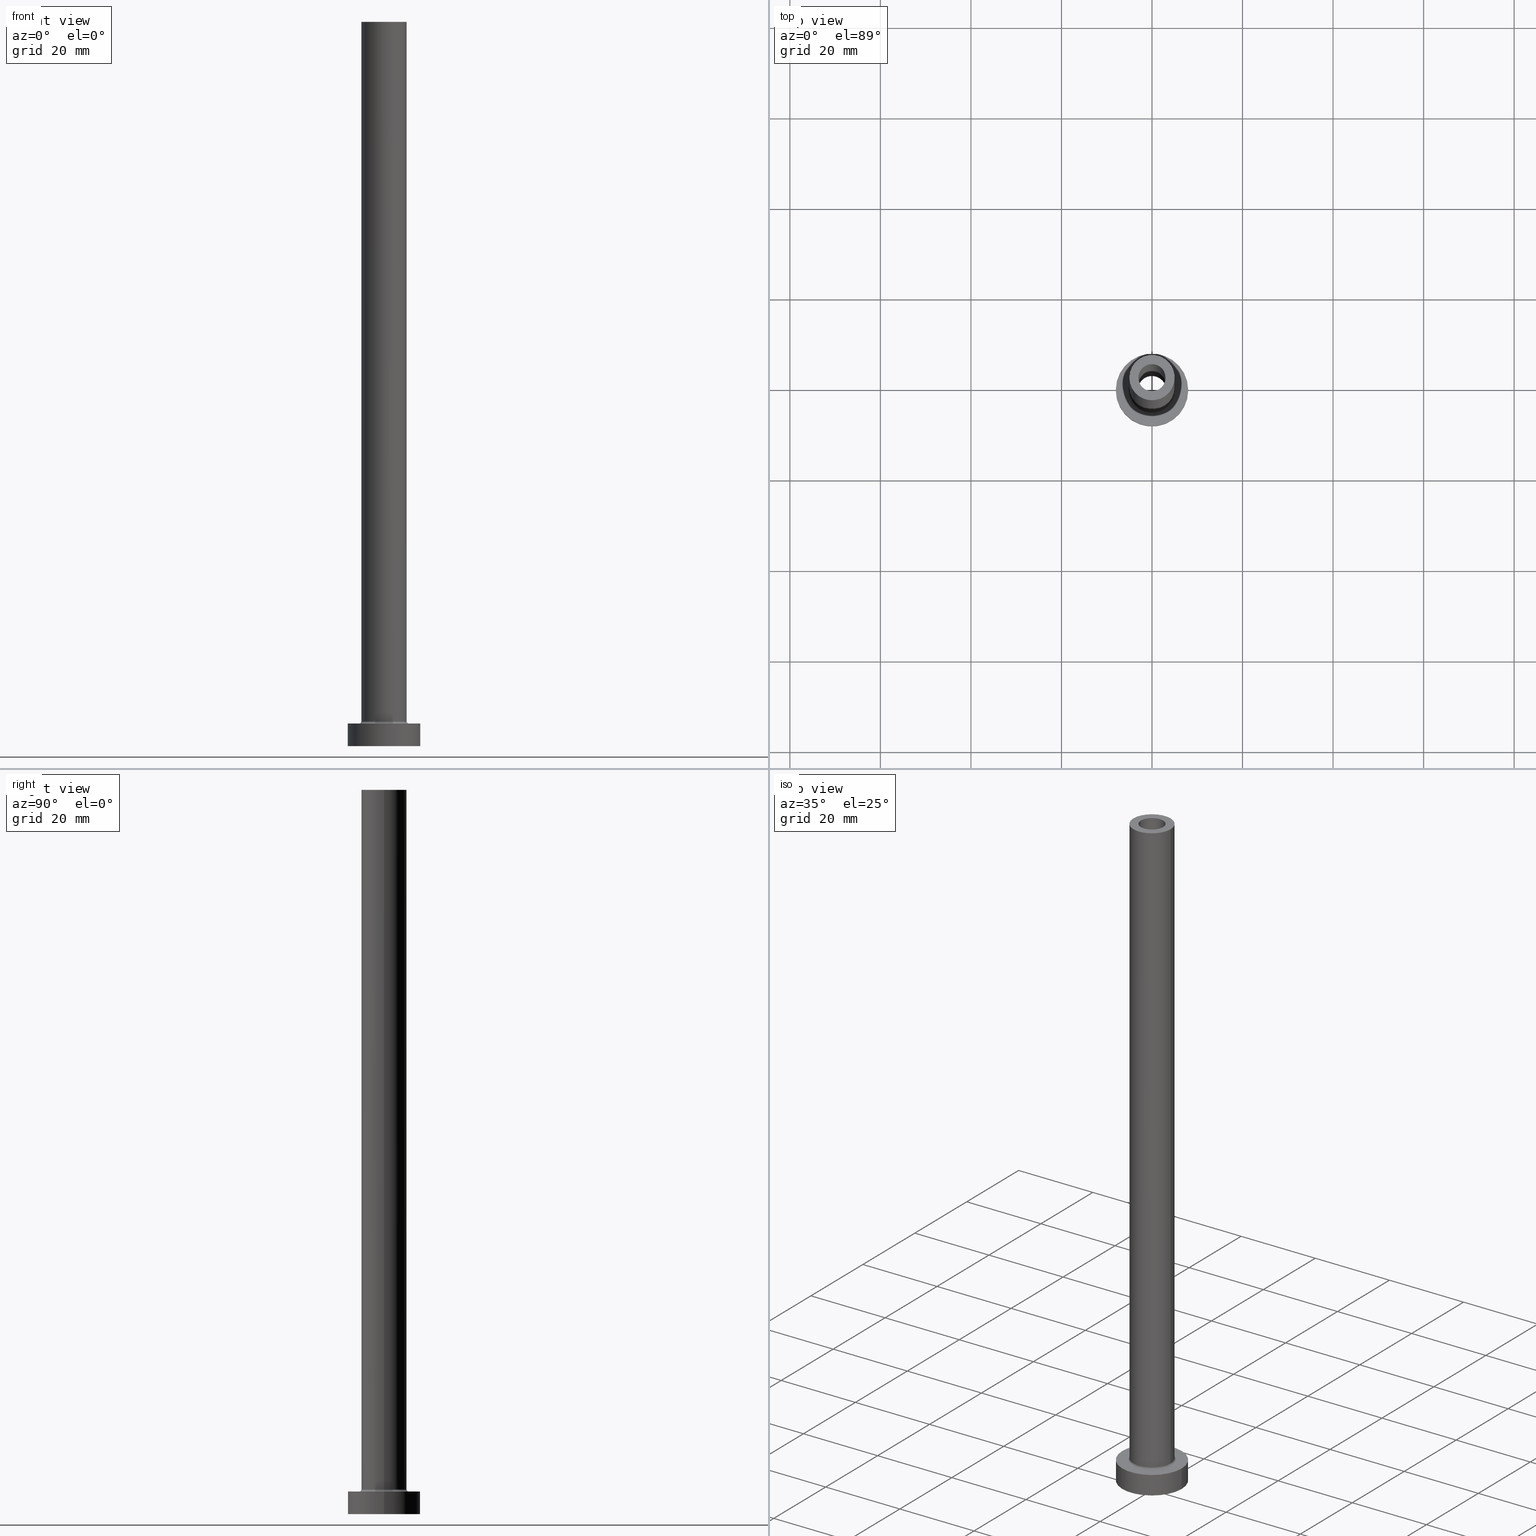
[diagram: canonical four-view strip — front | top / right | iso, engineering-drawing reading convention]
A machine part, canonical four-view strip (front | top / right | iso — engineering-drawing reading convention). The complete STEP part file that produces these views, byte-faithful:
ISO-10303-21;
HEADER;
FILE_DESCRIPTION (( 'STEP AP203' ),
    '1' );
FILE_NAME ('94f1.STEP',
    '2023-02-13T10:09:45',
    ( '' ),
    ( '' ),
    'SwSTEP 2.0',
    'SolidWorks 2019',
    '' );
FILE_SCHEMA (( 'CONFIG_CONTROL_DESIGN' ));
ENDSEC;

DATA;
#1 = DATE_AND_TIME ( #37, #456 ) ;
#2 = LINE ( 'NONE', #209, #336 ) ;
#3 = AXIS2_PLACEMENT_3D ( 'NONE', #190, #428, #461 ) ;
#4 = CARTESIAN_POINT ( 'NONE',  ( 0.000000000000000000, 0.000000000000000000, 160.0000000000000000 ) ) ;
#5 = CARTESIAN_POINT ( 'NONE',  ( 0.000000000000000000, 0.000000000000000000, 160.0000000000000000 ) ) ;
#6 = ORIENTED_EDGE ( 'NONE', *, *, #101, .F. ) ;
#7 = ORIENTED_EDGE ( 'NONE', *, *, #18, .F. ) ;
#8 = EDGE_LOOP ( 'NONE', ( #6, #390, #422, #401 ) ) ;
#9 = PERSON_AND_ORGANIZATION ( #211, #437 ) ;
#10 = VERTEX_POINT ( 'NONE', #149 ) ;
#11 = CARTESIAN_POINT ( 'NONE',  ( 0.000000000000000000, 0.000000000000000000, 0.000000000000000000 ) ) ;
#12 = EDGE_LOOP ( 'NONE', ( #191, #122 ) ) ;
#13 = CIRCLE ( 'NONE', #452, 5.000000000000000000 ) ;
#14 = VECTOR ( 'NONE', #217, 1000.000000000000000 ) ;
#15 = DIRECTION ( 'NONE',  ( 0.000000000000000000, 0.000000000000000000, 1.000000000000000000 ) ) ;
#16 = AXIS2_PLACEMENT_3D ( 'NONE', #35, #170, #277 ) ;
#17 = DIRECTION ( 'NONE',  ( 0.000000000000000000, 0.000000000000000000, 1.000000000000000000 ) ) ;
#18 = EDGE_CURVE ( 'NONE', #430, #169, #155, .T. ) ;
#19 = CARTESIAN_POINT ( 'NONE',  ( 3.000000000000000444, 3.673940397442059868E-16, 115.0000000000000000 ) ) ;
#20 = AXIS2_PLACEMENT_3D ( 'NONE', #393, #318, #143 ) ;
#21 = APPROVAL_PERSON_ORGANIZATION ( #309, #60, #176 ) ;
#22 = EDGE_CURVE ( 'NONE', #319, #364, #455, .T. ) ;
#23 = PLANE ( 'NONE',  #237 ) ;
#24 = FACE_OUTER_BOUND ( 'NONE', #200, .T. ) ;
#25 = AXIS2_PLACEMENT_3D ( 'NONE', #446, #115, #127 ) ;
#26 = EDGE_LOOP ( 'NONE', ( #275, #174, #311, #38 ) ) ;
#27 = CARTESIAN_POINT ( 'NONE',  ( 3.150000000000000355, 3.857637417314162196E-16, 0.000000000000000000 ) ) ;
#28 = EDGE_LOOP ( 'NONE', ( #426, #7, #431, #361 ) ) ;
#29 = DIRECTION ( 'NONE',  ( 1.000000000000000000, 0.000000000000000000, -0.000000000000000000 ) ) ;
#30 = EDGE_CURVE ( 'NONE', #355, #220, #396, .T. ) ;
#31 = ORIENTED_EDGE ( 'NONE', *, *, #101, .T. ) ;
#32 = ORIENTED_EDGE ( 'NONE', *, *, #251, .T. ) ;
#33 = CIRCLE ( 'NONE', #195, 5.000000000000000000 ) ;
#34 = ORIENTED_EDGE ( 'NONE', *, *, #64, .T. ) ;
#35 = CARTESIAN_POINT ( 'NONE',  ( 0.000000000000000000, 0.000000000000000000, 5.500000000000005329 ) ) ;
#36 = EDGE_LOOP ( 'NONE', ( #278, #119, #65, #163 ) ) ;
#37 = CALENDAR_DATE ( 2023, 13, 2 ) ;
#38 = ORIENTED_EDGE ( 'NONE', *, *, #30, .F. ) ;
#39 = PERSON_AND_ORGANIZATION ( #211, #437 ) ;
#40 = AXIS2_PLACEMENT_3D ( 'NONE', #202, #236, #420 ) ;
#41 = CC_DESIGN_SECURITY_CLASSIFICATION ( #367, ( #272 ) ) ;
#42 = VERTEX_POINT ( 'NONE', #407 ) ;
#43 = APPROVAL_ROLE ( '' ) ;
#44 = APPROVAL ( #152, 'NEUR�EN�' ) ;
#45 = VERTEX_POINT ( 'NONE', #150 ) ;
#46 = ORIENTED_EDGE ( 'NONE', *, *, #243, .F. ) ;
#47 = FACE_BOUND ( 'NONE', #290, .T. ) ;
#48 = EDGE_LOOP ( 'NONE', ( #416, #346 ) ) ;
#49 = CIRCLE ( 'NONE', #201, 3.000000000000000444 ) ;
#50 = FACE_OUTER_BOUND ( 'NONE', #80, .T. ) ;
#51 = CARTESIAN_POINT ( 'NONE',  ( 5.000000000000000000, 6.123233995736766282E-16, 160.0000000000000000 ) ) ;
#52 = COORDINATED_UNIVERSAL_TIME_OFFSET ( 1, 0, .AHEAD. ) ;
#53 = PRODUCT_DEFINITION ( 'NEZN�M�', '', #272, #186 ) ;
#54 = LINE ( 'NONE', #448, #412 ) ;
#55 = DIRECTION ( 'NONE',  ( -1.000000000000000000, 0.000000000000000000, 0.000000000000000000 ) ) ;
#56 = AXIS2_PLACEMENT_3D ( 'NONE', #11, #151, #284 ) ;
#57 = ORIENTED_EDGE ( 'NONE', *, *, #64, .F. ) ;
#58 = FACE_BOUND ( 'NONE', #218, .T. ) ;
#59 = VECTOR ( 'NONE', #192, 1000.000000000000000 ) ;
#60 = APPROVAL ( #423, 'NEUR�EN�' ) ;
#61 = LOCAL_TIME ( 11, 9, 45.00000000000000000, #392 ) ;
#62 = LINE ( 'NONE', #377, #293 ) ;
#63 = DIRECTION ( 'NONE',  ( 0.000000000000000000, 0.000000000000000000, -1.000000000000000000 ) ) ;
#64 = EDGE_CURVE ( 'NONE', #169, #430, #33, .T. ) ;
#65 = ORIENTED_EDGE ( 'NONE', *, *, #213, .T. ) ;
#66 = AXIS2_PLACEMENT_3D ( 'NONE', #91, #261, #348 ) ;
#67 = CC_DESIGN_APPROVAL ( #44, ( #367 ) ) ;
#68 = MANIFOLD_SOLID_BREP ( 'Odebrat vysunut�m4', #387 ) ;
#69 = ORIENTED_EDGE ( 'NONE', *, *, #307, .F. ) ;
#70 = CALENDAR_DATE ( 2023, 13, 2 ) ;
#71 = ORIENTED_EDGE ( 'NONE', *, *, #231, .T. ) ;
#72 = DIRECTION ( 'NONE',  ( 0.000000000000000000, 0.000000000000000000, 1.000000000000000000 ) ) ;
#73 = PERSON_AND_ORGANIZATION_ROLE ( 'classification_officer' ) ;
#74 = CALENDAR_DATE ( 2023, 13, 2 ) ;
#75 = CC_DESIGN_PERSON_AND_ORGANIZATION_ASSIGNMENT ( #181, #349, ( #297 ) ) ;
#76 = CARTESIAN_POINT ( 'NONE',  ( 0.000000000000000000, 0.000000000000000000, 0.000000000000000000 ) ) ;
#77 = AXIS2_PLACEMENT_3D ( 'NONE', #166, #421, #103 ) ;
#78 = DIRECTION ( 'NONE',  ( -0.000000000000000000, -0.000000000000000000, -1.000000000000000000 ) ) ;
#79 = CARTESIAN_POINT ( 'NONE',  ( 0.000000000000000000, 0.000000000000000000, 115.0000000000000000 ) ) ;
#80 = EDGE_LOOP ( 'NONE', ( #453, #182, #454, #34 ) ) ;
#81 = CYLINDRICAL_SURFACE ( 'NONE', #264, 3.000000000000000444 ) ;
#82 = DIRECTION ( 'NONE',  ( 1.000000000000000000, 0.000000000000000000, 0.000000000000000000 ) ) ;
#83 = VERTEX_POINT ( 'NONE', #324 ) ;
#84 = EDGE_CURVE ( 'NONE', #118, #430, #230, .T. ) ;
#85 = CARTESIAN_POINT ( 'NONE',  ( 3.000000000000000444, 3.673940397442059868E-16, 160.0000000000000000 ) ) ;
#86 = CARTESIAN_POINT ( 'NONE',  ( 0.000000000000000000, 0.000000000000000000, 5.000000000000000000 ) ) ;
#87 = CIRCLE ( 'NONE', #335, 0.5000000000000004441 ) ;
#88 = ORIENTED_EDGE ( 'NONE', *, *, #117, .F. ) ;
#89 = CIRCLE ( 'NONE', #380, 8.000000000000000000 ) ;
#90 = DIRECTION ( 'NONE',  ( -0.000000000000000000, -0.000000000000000000, -1.000000000000000000 ) ) ;
#91 = CARTESIAN_POINT ( 'NONE',  ( 5.500000000000000000, 0.000000000000000000, 5.500000000000005329 ) ) ;
#92 = DIRECTION ( 'NONE',  ( 1.000000000000000000, 0.000000000000000000, 0.000000000000000000 ) ) ;
#93 = EDGE_CURVE ( 'NONE', #364, #319, #329, .T. ) ;
#94 = AXIS2_PLACEMENT_3D ( 'NONE', #406, #90, #370 ) ;
#95 = APPROVAL_PERSON_ORGANIZATION ( #322, #44, #328 ) ;
#96 = DIRECTION ( 'NONE',  ( 0.000000000000000000, 0.000000000000000000, 1.000000000000000000 ) ) ;
#97 = EDGE_CURVE ( 'NONE', #177, #315, #256, .T. ) ;
#98 = FACE_OUTER_BOUND ( 'NONE', #327, .T. ) ;
#99 = AXIS2_PLACEMENT_3D ( 'NONE', #120, #255, #55 ) ;
#100 = FACE_OUTER_BOUND ( 'NONE', #8, .T. ) ;
#101 = EDGE_CURVE ( 'NONE', #118, #269, #250, .T. ) ;
#102 = FACE_OUTER_BOUND ( 'NONE', #359, .T. ) ;
#103 = DIRECTION ( 'NONE',  ( 1.000000000000000000, 0.000000000000000000, 0.000000000000000000 ) ) ;
#104 = EDGE_LOOP ( 'NONE', ( #232, #415 ) ) ;
#105 = ADVANCED_BREP_SHAPE_REPRESENTATION ( '94f1', ( #68, #113 ), #146 ) ;
#106 = PERSON_AND_ORGANIZATION_ROLE ( 'design_supplier' ) ;
#107 = ORIENTED_EDGE ( 'NONE', *, *, #400, .F. ) ;
#108 = CARTESIAN_POINT ( 'NONE',  ( 0.000000000000000000, 0.000000000000000000, 5.500000000000005329 ) ) ;
#109 = DATE_AND_TIME ( #74, #126 ) ;
#110 =( NAMED_UNIT ( * ) SI_UNIT ( $, .STERADIAN. ) SOLID_ANGLE_UNIT ( ) );
#111 = ORIENTED_EDGE ( 'NONE', *, *, #384, .F. ) ;
#112 = AXIS2_PLACEMENT_3D ( 'NONE', #360, #363, #321 ) ;
#113 = AXIS2_PLACEMENT_3D ( 'NONE', #76, #219, #358 ) ;
#114 = CARTESIAN_POINT ( 'NONE',  ( 3.150000000000000355, 3.857637417314162196E-16, 115.0000000000000000 ) ) ;
#115 = DIRECTION ( 'NONE',  ( 0.000000000000000000, 0.000000000000000000, 1.000000000000000000 ) ) ;
#116 = COORDINATED_UNIVERSAL_TIME_OFFSET ( 1, 0, .AHEAD. ) ;
#117 = EDGE_CURVE ( 'NONE', #42, #315, #357, .T. ) ;
#118 = VERTEX_POINT ( 'NONE', #399 ) ;
#119 = ORIENTED_EDGE ( 'NONE', *, *, #97, .T. ) ;
#120 = CARTESIAN_POINT ( 'NONE',  ( 0.000000000000000000, 0.000000000000000000, 160.0000000000000000 ) ) ;
#121 = DIRECTION ( 'NONE',  ( 1.000000000000000000, 0.000000000000000000, 0.000000000000000000 ) ) ;
#122 = ORIENTED_EDGE ( 'NONE', *, *, #22, .F. ) ;
#123 = CARTESIAN_POINT ( 'NONE',  ( 0.000000000000000000, 0.000000000000000000, 5.500000000000005329 ) ) ;
#124 = CARTESIAN_POINT ( 'NONE',  ( 0.000000000000000000, 0.000000000000000000, 123.9095454429505025 ) ) ;
#125 = CIRCLE ( 'NONE', #167, 5.500000000000000000 ) ;
#126 = LOCAL_TIME ( 11, 9, 45.00000000000000000, #310 ) ;
#127 = DIRECTION ( 'NONE',  ( 1.000000000000000000, 0.000000000000000000, 0.000000000000000000 ) ) ;
#128 = APPLICATION_CONTEXT ( 'configuration controlled 3d designs of mechanical parts and assemblies' ) ;
#129 = CC_DESIGN_DATE_AND_TIME_ASSIGNMENT ( #366, #257, ( #367 ) ) ;
#130 = CARTESIAN_POINT ( 'NONE',  ( -3.000000000000000444, 0.000000000000000000, 160.0000000000000000 ) ) ;
#131 =( LENGTH_UNIT ( ) NAMED_UNIT ( * ) SI_UNIT ( .MILLI., .METRE. ) );
#132 = CIRCLE ( 'NONE', #168, 8.000000000000000000 ) ;
#133 = EDGE_CURVE ( 'NONE', #220, #355, #49, .T. ) ;
#134 = DIRECTION ( 'NONE',  ( -1.000000000000000000, 0.000000000000000000, 0.000000000000000000 ) ) ;
#135 = CARTESIAN_POINT ( 'NONE',  ( 0.000000000000000000, 0.000000000000000000, 160.0000000000000000 ) ) ;
#136 = EDGE_LOOP ( 'NONE', ( #111, #372, #241, #434 ) ) ;
#137 = FACE_OUTER_BOUND ( 'NONE', #187, .T. ) ;
#138 = CARTESIAN_POINT ( 'NONE',  ( -8.000000000000000000, 0.000000000000000000, 5.000000000000000000 ) ) ;
#139 = DIRECTION ( 'NONE',  ( -0.000000000000000000, -0.000000000000000000, -1.000000000000000000 ) ) ;
#140 = DIRECTION ( 'NONE',  ( -0.000000000000000000, -0.000000000000000000, -1.000000000000000000 ) ) ;
#141 = ORIENTED_EDGE ( 'NONE', *, *, #133, .T. ) ;
#142 = ORIENTED_EDGE ( 'NONE', *, *, #153, .T. ) ;
#143 = DIRECTION ( 'NONE',  ( 1.000000000000000000, 0.000000000000000000, -0.000000000000000000 ) ) ;
#144 = CIRCLE ( 'NONE', #56, 8.000000000000000000 ) ;
#145 = APPROVAL_DATE_TIME ( #1, #373 ) ;
#146 =( GEOMETRIC_REPRESENTATION_CONTEXT ( 3 ) GLOBAL_UNCERTAINTY_ASSIGNED_CONTEXT ( ( #253 ) ) GLOBAL_UNIT_ASSIGNED_CONTEXT ( ( #131, #199, #110 ) ) REPRESENTATION_CONTEXT ( 'NONE', 'WORKASPACE' ) );
#147 = EDGE_CURVE ( 'NONE', #457, #177, #299, .T. ) ;
#148 = DIRECTION ( 'NONE',  ( -1.000000000000000000, 0.000000000000000000, 0.000000000000000000 ) ) ;
#149 = CARTESIAN_POINT ( 'NONE',  ( 8.000000000000000000, 9.797174393178825657E-16, 5.000000000000000000 ) ) ;
#150 = CARTESIAN_POINT ( 'NONE',  ( -5.500000000000000000, 6.735557395310442023E-16, 5.000000000000002665 ) ) ;
#151 = DIRECTION ( 'NONE',  ( 0.000000000000000000, 0.000000000000000000, 1.000000000000000000 ) ) ;
#152 = APPROVAL_STATUS ( 'not_yet_approved' ) ;
#153 = EDGE_CURVE ( 'NONE', #351, #350, #144, .T. ) ;
#154 = CARTESIAN_POINT ( 'NONE',  ( 0.000000000000000000, 0.000000000000000000, 115.0000000000000000 ) ) ;
#155 = CIRCLE ( 'NONE', #244, 5.000000000000000000 ) ;
#156 = ADVANCED_FACE ( 'NONE', ( #47, #98 ), #233, .F. ) ;
#157 = CARTESIAN_POINT ( 'NONE',  ( 0.000000000000000000, 0.000000000000000000, 0.000000000000000000 ) ) ;
#158 = FACE_OUTER_BOUND ( 'NONE', #36, .T. ) ;
#159 = DIRECTION ( 'NONE',  ( 1.000000000000000000, 0.000000000000000000, 0.000000000000000000 ) ) ;
#160 = ADVANCED_FACE ( 'NONE', ( #435 ), #189, .T. ) ;
#161 = DIRECTION ( 'NONE',  ( 1.000000000000000000, 0.000000000000000000, -0.000000000000000000 ) ) ;
#162 = LINE ( 'NONE', #138, #447 ) ;
#163 = ORIENTED_EDGE ( 'NONE', *, *, #326, .F. ) ;
#164 = DIRECTION ( 'NONE',  ( 0.000000000000000000, 0.000000000000000000, 1.000000000000000000 ) ) ;
#165 = PRODUCT_RELATED_PRODUCT_CATEGORY ( 'detail', '', ( #297 ) ) ;
#166 = CARTESIAN_POINT ( 'NONE',  ( 0.000000000000000000, 0.000000000000000000, 5.500000000000005329 ) ) ;
#167 = AXIS2_PLACEMENT_3D ( 'NONE', #207, #382, #458 ) ;
#168 = AXIS2_PLACEMENT_3D ( 'NONE', #449, #15, #411 ) ;
#169 = VERTEX_POINT ( 'NONE', #247 ) ;
#170 = DIRECTION ( 'NONE',  ( 0.000000000000000000, 0.000000000000000000, 1.000000000000000000 ) ) ;
#171 = APPLICATION_PROTOCOL_DEFINITION ( 'international standard', 'config_control_design', 1994, #331 ) ;
#172 = DIRECTION ( 'NONE',  ( 0.000000000000000000, 0.000000000000000000, -1.000000000000000000 ) ) ;
#173 = CARTESIAN_POINT ( 'NONE',  ( 0.000000000000000000, 0.000000000000000000, 5.000000000000000000 ) ) ;
#174 = ORIENTED_EDGE ( 'NONE', *, *, #22, .T. ) ;
#175 = EDGE_CURVE ( 'NONE', #45, #83, #208, .T. ) ;
#176 = APPROVAL_ROLE ( '' ) ;
#177 = VERTEX_POINT ( 'NONE', #114 ) ;
#178 = DIRECTION ( 'NONE',  ( -0.000000000000000000, -0.000000000000000000, -1.000000000000000000 ) ) ;
#179 = CIRCLE ( 'NONE', #40, 3.150000000000000355 ) ;
#180 = LOCAL_TIME ( 11, 9, 45.00000000000000000, #116 ) ;
#181 = PERSON_AND_ORGANIZATION ( #211, #437 ) ;
#182 = ORIENTED_EDGE ( 'NONE', *, *, #188, .F. ) ;
#183 = DIRECTION ( 'NONE',  ( 1.000000000000000000, 0.000000000000000000, 0.000000000000000000 ) ) ;
#184 = PERSON_AND_ORGANIZATION_ROLE ( 'creator' ) ;
#185 = ORIENTED_EDGE ( 'NONE', *, *, #147, .F. ) ;
#186 = DESIGN_CONTEXT ( 'detailed design', #331, 'design' ) ;
#187 = EDGE_LOOP ( 'NONE', ( #248, #31 ) ) ;
#188 = EDGE_CURVE ( 'NONE', #269, #118, #13, .T. ) ;
#189 = CYLINDRICAL_SURFACE ( 'NONE', #325, 8.000000000000000000 ) ;
#190 = CARTESIAN_POINT ( 'NONE',  ( 0.000000000000000000, 0.000000000000000000, 5.000000000000000000 ) ) ;
#191 = ORIENTED_EDGE ( 'NONE', *, *, #93, .F. ) ;
#192 = DIRECTION ( 'NONE',  ( 0.000000000000000000, 0.000000000000000000, -1.000000000000000000 ) ) ;
#193 = ADVANCED_FACE ( 'NONE', ( #249 ), #397, .T. ) ;
#194 = DIRECTION ( 'NONE',  ( 1.000000000000000000, 0.000000000000000000, 0.000000000000000000 ) ) ;
#195 = AXIS2_PLACEMENT_3D ( 'NONE', #123, #436, #283 ) ;
#196 = CC_DESIGN_APPROVAL ( #60, ( #53 ) ) ;
#197 = ADVANCED_FACE ( 'NONE', ( #320 ), #441, .F. ) ;
#198 = DIRECTION ( 'NONE',  ( 0.000000000000000000, 0.000000000000000000, -1.000000000000000000 ) ) ;
#199 =( NAMED_UNIT ( * ) PLANE_ANGLE_UNIT ( ) SI_UNIT ( $, .RADIAN. ) );
#200 = EDGE_LOOP ( 'NONE', ( #432, #32, #440, #226 ) ) ;
#201 = AXIS2_PLACEMENT_3D ( 'NONE', #79, #223, #225 ) ;
#202 = CARTESIAN_POINT ( 'NONE',  ( 0.000000000000000000, 0.000000000000000000, 115.0000000000000000 ) ) ;
#203 = PLANE ( 'NONE',  #280 ) ;
#204 = EDGE_LOOP ( 'NONE', ( #69, #107, #254, #142 ) ) ;
#205 = CC_DESIGN_PERSON_AND_ORGANIZATION_ASSIGNMENT ( #39, #73, ( #367 ) ) ;
#206 = DIRECTION ( 'NONE',  ( -1.000000000000000000, 0.000000000000000000, 0.000000000000000000 ) ) ;
#207 = CARTESIAN_POINT ( 'NONE',  ( 0.000000000000000000, 0.000000000000000000, 5.000000000000000000 ) ) ;
#208 = CIRCLE ( 'NONE', #3, 5.500000000000000000 ) ;
#209 = CARTESIAN_POINT ( 'NONE',  ( -3.000000000000000444, 0.000000000000000000, 160.0000000000000000 ) ) ;
#210 = MECHANICAL_CONTEXT ( 'NONE', #128, 'mechanical' ) ;
#211 = PERSON ( 'NEUR�EN�', 'NEUR�EN�', 'NEUR�EN�', ('NEUR�EN�'), ('NEUR�EN�'), ('NEUR�EN�') ) ;
#212 = VERTEX_POINT ( 'NONE', #291 ) ;
#213 = EDGE_CURVE ( 'NONE', #315, #42, #262, .T. ) ;
#214 = DATE_AND_TIME ( #427, #61 ) ;
#215 = COORDINATED_UNIVERSAL_TIME_OFFSET ( 1, 0, .AHEAD. ) ;
#216 = CARTESIAN_POINT ( 'NONE',  ( 0.000000000000000000, 0.000000000000000000, 5.000000000000000000 ) ) ;
#217 = DIRECTION ( 'NONE',  ( 0.000000000000000000, 0.000000000000000000, -1.000000000000000000 ) ) ;
#218 = EDGE_LOOP ( 'NONE', ( #88, #362 ) ) ;
#219 = DIRECTION ( 'NONE',  ( 0.000000000000000000, 0.000000000000000000, 1.000000000000000000 ) ) ;
#220 = VERTEX_POINT ( 'NONE', #298 ) ;
#221 = AXIS2_PLACEMENT_3D ( 'NONE', #135, #139, #206 ) ;
#222 = ORIENTED_EDGE ( 'NONE', *, *, #289, .T. ) ;
#223 = DIRECTION ( 'NONE',  ( 0.000000000000000000, 0.000000000000000000, 1.000000000000000000 ) ) ;
#224 = DIRECTION ( 'NONE',  ( -1.000000000000000000, 0.000000000000000000, 0.000000000000000000 ) ) ;
#225 = DIRECTION ( 'NONE',  ( 1.000000000000000000, 0.000000000000000000, 0.000000000000000000 ) ) ;
#226 = ORIENTED_EDGE ( 'NONE', *, *, #117, .T. ) ;
#227 = DIRECTION ( 'NONE',  ( 0.000000000000000000, 0.000000000000000000, -1.000000000000000000 ) ) ;
#228 = DIRECTION ( 'NONE',  ( 0.000000000000000000, 0.000000000000000000, 1.000000000000000000 ) ) ;
#229 = AXIS2_PLACEMENT_3D ( 'NONE', #154, #438, #292 ) ;
#230 = LINE ( 'NONE', #51, #424 ) ;
#231 = EDGE_CURVE ( 'NONE', #319, #355, #451, .T. ) ;
#232 = ORIENTED_EDGE ( 'NONE', *, *, #153, .F. ) ;
#233 = PLANE ( 'NONE',  #20 ) ;
#234 = DIRECTION ( 'NONE',  ( 1.000000000000000000, 0.000000000000000000, -0.000000000000000000 ) ) ;
#235 = AXIS2_PLACEMENT_3D ( 'NONE', #300, #63, #134 ) ;
#236 = DIRECTION ( 'NONE',  ( 0.000000000000000000, 0.000000000000000000, 1.000000000000000000 ) ) ;
#237 = AXIS2_PLACEMENT_3D ( 'NONE', #270, #164, #234 ) ;
#238 = CARTESIAN_POINT ( 'NONE',  ( -5.500000000000000000, 6.735557395310442023E-16, 5.500000000000005329 ) ) ;
#239 = ADVANCED_FACE ( 'NONE', ( #50 ), #259, .T. ) ;
#240 = PLANE ( 'NONE',  #279 ) ;
#241 = ORIENTED_EDGE ( 'NONE', *, *, #330, .T. ) ;
#242 = DIRECTION ( 'NONE',  ( 1.224646799147353207E-16, 1.000000000000000000, -0.000000000000000000 ) ) ;
#243 = EDGE_CURVE ( 'NONE', #83, #45, #125, .T. ) ;
#244 = AXIS2_PLACEMENT_3D ( 'NONE', #108, #378, #288 ) ;
#245 = ORIENTED_EDGE ( 'NONE', *, *, #133, .F. ) ;
#246 = ORIENTED_EDGE ( 'NONE', *, *, #251, .F. ) ;
#247 = CARTESIAN_POINT ( 'NONE',  ( -5.000000000000000000, 0.000000000000000000, 5.500000000000005329 ) ) ;
#248 = ORIENTED_EDGE ( 'NONE', *, *, #188, .T. ) ;
#249 = FACE_OUTER_BOUND ( 'NONE', #204, .T. ) ;
#250 = CIRCLE ( 'NONE', #25, 5.000000000000000000 ) ;
#251 = EDGE_CURVE ( 'NONE', #177, #457, #179, .T. ) ;
#252 = AXIS2_PLACEMENT_3D ( 'NONE', #124, #198, #267 ) ;
#253 = UNCERTAINTY_MEASURE_WITH_UNIT (LENGTH_MEASURE( 1.000000000000000082E-05 ), #131, 'distance_accuracy_value', 'NONE');
#254 = ORIENTED_EDGE ( 'NONE', *, *, #263, .T. ) ;
#255 = DIRECTION ( 'NONE',  ( 0.000000000000000000, 0.000000000000000000, -1.000000000000000000 ) ) ;
#256 = LINE ( 'NONE', #444, #59 ) ;
#257 = DATE_TIME_ROLE ( 'classification_date' ) ;
#258 = ADVANCED_FACE ( 'NONE', ( #24 ), #381, .F. ) ;
#259 = CYLINDRICAL_SURFACE ( 'NONE', #94, 5.000000000000000000 ) ;
#260 = CARTESIAN_POINT ( 'NONE',  ( 0.000000000000000000, 0.000000000000000000, 160.0000000000000000 ) ) ;
#261 = DIRECTION ( 'NONE',  ( 0.000000000000000000, -1.000000000000000000, 0.000000000000000000 ) ) ;
#262 = CIRCLE ( 'NONE', #365, 3.150000000000000355 ) ;
#263 = EDGE_CURVE ( 'NONE', #212, #351, #162, .T. ) ;
#264 = AXIS2_PLACEMENT_3D ( 'NONE', #4, #172, #148 ) ;
#265 = AXIS2_PLACEMENT_3D ( 'NONE', #371, #17, #121 ) ;
#266 = APPROVAL_PERSON_ORGANIZATION ( #286, #373, #43 ) ;
#267 = DIRECTION ( 'NONE',  ( -1.000000000000000000, 0.000000000000000000, 0.000000000000000000 ) ) ;
#268 = ADVANCED_FACE ( 'NONE', ( #417, #102 ), #240, .T. ) ;
#269 = VERTEX_POINT ( 'NONE', #276 ) ;
#270 = CARTESIAN_POINT ( 'NONE',  ( 0.000000000000000000, 0.000000000000000000, 160.0000000000000000 ) ) ;
#271 = TOROIDAL_SURFACE ( 'NONE', #77, 5.500000000000000000, 0.5000000000000000000 ) ;
#272 = PRODUCT_DEFINITION_FORMATION_WITH_SPECIFIED_SOURCE ( 'LIBOVOLN�', '', #297, .NOT_KNOWN. ) ;
#273 = DIRECTION ( 'NONE',  ( 0.000000000000000000, 0.000000000000000000, -1.000000000000000000 ) ) ;
#274 = ADVANCED_FACE ( 'NONE', ( #100 ), #388, .T. ) ;
#275 = ORIENTED_EDGE ( 'NONE', *, *, #231, .F. ) ;
#276 = CARTESIAN_POINT ( 'NONE',  ( -5.000000000000000000, 0.000000000000000000, 160.0000000000000000 ) ) ;
#277 = DIRECTION ( 'NONE',  ( 1.000000000000000000, 0.000000000000000000, 0.000000000000000000 ) ) ;
#278 = ORIENTED_EDGE ( 'NONE', *, *, #147, .T. ) ;
#279 = AXIS2_PLACEMENT_3D ( 'NONE', #216, #338, #161 ) ;
#280 = AXIS2_PLACEMENT_3D ( 'NONE', #301, #96, #29 ) ;
#281 = ORIENTED_EDGE ( 'NONE', *, *, #30, .T. ) ;
#282 = CC_DESIGN_PERSON_AND_ORGANIZATION_ASSIGNMENT ( #9, #106, ( #272 ) ) ;
#283 = DIRECTION ( 'NONE',  ( 1.000000000000000000, 0.000000000000000000, 0.000000000000000000 ) ) ;
#284 = DIRECTION ( 'NONE',  ( 1.000000000000000000, 0.000000000000000000, 0.000000000000000000 ) ) ;
#285 = CIRCLE ( 'NONE', #343, 8.000000000000000000 ) ;
#286 = PERSON_AND_ORGANIZATION ( #211, #437 ) ;
#287 = CARTESIAN_POINT ( 'NONE',  ( 0.000000000000000000, 0.000000000000000000, 5.000000000000000000 ) ) ;
#288 = DIRECTION ( 'NONE',  ( 1.000000000000000000, 0.000000000000000000, 0.000000000000000000 ) ) ;
#289 = EDGE_CURVE ( 'NONE', #169, #45, #87, .T. ) ;
#290 = EDGE_LOOP ( 'NONE', ( #141, #281 ) ) ;
#291 = CARTESIAN_POINT ( 'NONE',  ( -8.000000000000000000, 0.000000000000000000, 5.000000000000000000 ) ) ;
#292 = DIRECTION ( 'NONE',  ( 1.000000000000000000, 0.000000000000000000, 0.000000000000000000 ) ) ;
#293 = VECTOR ( 'NONE', #337, 1000.000000000000000 ) ;
#294 = CC_DESIGN_APPROVAL ( #373, ( #272 ) ) ;
#295 = CYLINDRICAL_SURFACE ( 'NONE', #252, 3.150000000000000355 ) ;
#296 = DIRECTION ( 'NONE',  ( -0.000000000000000000, -0.000000000000000000, -1.000000000000000000 ) ) ;
#297 = PRODUCT ( '94f1', '94f1', '', ( #210 ) ) ;
#298 = CARTESIAN_POINT ( 'NONE',  ( -3.000000000000000444, 0.000000000000000000, 115.0000000000000000 ) ) ;
#299 = CIRCLE ( 'NONE', #112, 3.150000000000000355 ) ;
#300 = CARTESIAN_POINT ( 'NONE',  ( 0.000000000000000000, 0.000000000000000000, 123.9095454429505025 ) ) ;
#301 = CARTESIAN_POINT ( 'NONE',  ( 0.000000000000000000, 0.000000000000000000, 0.000000000000000000 ) ) ;
#302 = CARTESIAN_POINT ( 'NONE',  ( 3.000000000000000444, 3.673940397442059868E-16, 160.0000000000000000 ) ) ;
#303 = FACE_BOUND ( 'NONE', #12, .T. ) ;
#304 = PRODUCT_DEFINITION_SHAPE ( 'NONE', 'NONE',  #53 ) ;
#305 = AXIS2_PLACEMENT_3D ( 'NONE', #287, #78, #224 ) ;
#306 = ORIENTED_EDGE ( 'NONE', *, *, #384, .T. ) ;
#307 = EDGE_CURVE ( 'NONE', #10, #350, #62, .T. ) ;
#308 = PERSON_AND_ORGANIZATION_ROLE ( 'creator' ) ;
#309 = PERSON_AND_ORGANIZATION ( #211, #437 ) ;
#310 = COORDINATED_UNIVERSAL_TIME_OFFSET ( 1, 0, .AHEAD. ) ;
#311 = ORIENTED_EDGE ( 'NONE', *, *, #413, .T. ) ;
#312 = FACE_OUTER_BOUND ( 'NONE', #394, .T. ) ;
#313 = VECTOR ( 'NONE', #227, 1000.000000000000000 ) ;
#314 = DIRECTION ( 'NONE',  ( -1.000000000000000000, 0.000000000000000000, 0.000000000000000000 ) ) ;
#315 = VERTEX_POINT ( 'NONE', #27 ) ;
#316 = APPROVAL_DATE_TIME ( #352, #44 ) ;
#317 = ADVANCED_FACE ( 'NONE', ( #418 ), #271, .F. ) ;
#318 = DIRECTION ( 'NONE',  ( 0.000000000000000000, 0.000000000000000000, 1.000000000000000000 ) ) ;
#319 = VERTEX_POINT ( 'NONE', #302 ) ;
#320 = FACE_OUTER_BOUND ( 'NONE', #26, .T. ) ;
#321 = DIRECTION ( 'NONE',  ( 1.000000000000000000, 0.000000000000000000, 0.000000000000000000 ) ) ;
#322 = PERSON_AND_ORGANIZATION ( #211, #437 ) ;
#323 = DATE_TIME_ROLE ( 'creation_date' ) ;
#324 = CARTESIAN_POINT ( 'NONE',  ( 5.500000000000000000, 0.000000000000000000, 5.000000000000002665 ) ) ;
#325 = AXIS2_PLACEMENT_3D ( 'NONE', #173, #178, #314 ) ;
#326 = EDGE_CURVE ( 'NONE', #457, #42, #385, .T. ) ;
#327 = EDGE_LOOP ( 'NONE', ( #185, #246 ) ) ;
#328 = APPROVAL_ROLE ( '' ) ;
#329 = CIRCLE ( 'NONE', #265, 3.000000000000000444 ) ;
#330 = EDGE_CURVE ( 'NONE', #350, #351, #285, .T. ) ;
#331 = APPLICATION_CONTEXT ( 'configuration controlled 3d designs of mechanical parts and assemblies' ) ;
#332 = DIRECTION ( 'NONE',  ( -0.000000000000000000, -0.000000000000000000, -1.000000000000000000 ) ) ;
#333 = ADVANCED_FACE ( 'NONE', ( #312 ), #81, .F. ) ;
#334 = ORIENTED_EDGE ( 'NONE', *, *, #413, .F. ) ;
#335 = AXIS2_PLACEMENT_3D ( 'NONE', #238, #242, #414 ) ;
#336 = VECTOR ( 'NONE', #273, 1000.000000000000000 ) ;
#337 = DIRECTION ( 'NONE',  ( -0.000000000000000000, -0.000000000000000000, -1.000000000000000000 ) ) ;
#338 = DIRECTION ( 'NONE',  ( 0.000000000000000000, 0.000000000000000000, 1.000000000000000000 ) ) ;
#339 = FACE_OUTER_BOUND ( 'NONE', #104, .T. ) ;
#340 = ORIENTED_EDGE ( 'NONE', *, *, #410, .F. ) ;
#341 = CARTESIAN_POINT ( 'NONE',  ( 5.000000000000000000, 6.123233995736766282E-16, 5.500000000000005329 ) ) ;
#342 = APPLICATION_PROTOCOL_DEFINITION ( 'international standard', 'config_control_design', 1994, #128 ) ;
#343 = AXIS2_PLACEMENT_3D ( 'NONE', #356, #344, #183 ) ;
#344 = DIRECTION ( 'NONE',  ( 0.000000000000000000, 0.000000000000000000, 1.000000000000000000 ) ) ;
#345 = CIRCLE ( 'NONE', #66, 0.5000000000000004441 ) ;
#346 = ORIENTED_EDGE ( 'NONE', *, *, #175, .T. ) ;
#347 = PERSON_AND_ORGANIZATION ( #211, #437 ) ;
#348 = DIRECTION ( 'NONE',  ( 0.000000000000000000, 0.000000000000000000, -1.000000000000000000 ) ) ;
#349 = PERSON_AND_ORGANIZATION_ROLE ( 'design_owner' ) ;
#350 = VERTEX_POINT ( 'NONE', #369 ) ;
#351 = VERTEX_POINT ( 'NONE', #404 ) ;
#352 = DATE_AND_TIME ( #70, #398 ) ;
#353 = SECURITY_CLASSIFICATION_LEVEL ( 'unclassified' ) ;
#354 = CC_DESIGN_PERSON_AND_ORGANIZATION_ASSIGNMENT ( #429, #184, ( #272 ) ) ;
#355 = VERTEX_POINT ( 'NONE', #19 ) ;
#356 = CARTESIAN_POINT ( 'NONE',  ( 0.000000000000000000, 0.000000000000000000, 0.000000000000000000 ) ) ;
#357 = CIRCLE ( 'NONE', #408, 3.150000000000000355 ) ;
#358 = DIRECTION ( 'NONE',  ( 1.000000000000000000, 0.000000000000000000, 0.000000000000000000 ) ) ;
#359 = EDGE_LOOP ( 'NONE', ( #395, #306 ) ) ;
#360 = CARTESIAN_POINT ( 'NONE',  ( 0.000000000000000000, 0.000000000000000000, 115.0000000000000000 ) ) ;
#361 = ORIENTED_EDGE ( 'NONE', *, *, #175, .F. ) ;
#362 = ORIENTED_EDGE ( 'NONE', *, *, #213, .F. ) ;
#363 = DIRECTION ( 'NONE',  ( 0.000000000000000000, 0.000000000000000000, 1.000000000000000000 ) ) ;
#364 = VERTEX_POINT ( 'NONE', #130 ) ;
#365 = AXIS2_PLACEMENT_3D ( 'NONE', #157, #332, #159 ) ;
#366 = DATE_AND_TIME ( #403, #180 ) ;
#367 = SECURITY_CLASSIFICATION ( '', '', #353 ) ;
#368 = DIRECTION ( 'NONE',  ( 1.000000000000000000, 0.000000000000000000, 0.000000000000000000 ) ) ;
#369 = CARTESIAN_POINT ( 'NONE',  ( 8.000000000000000000, 9.797174393178825657E-16, 0.000000000000000000 ) ) ;
#370 = DIRECTION ( 'NONE',  ( -1.000000000000000000, 0.000000000000000000, 0.000000000000000000 ) ) ;
#371 = CARTESIAN_POINT ( 'NONE',  ( 0.000000000000000000, 0.000000000000000000, 160.0000000000000000 ) ) ;
#372 = ORIENTED_EDGE ( 'NONE', *, *, #307, .T. ) ;
#373 = APPROVAL ( #459, 'NEUR�EN�' ) ;
#374 = TOROIDAL_SURFACE ( 'NONE', #16, 5.500000000000000000, 0.5000000000000000000 ) ;
#375 = EDGE_CURVE ( 'NONE', #269, #169, #54, .T. ) ;
#376 = CARTESIAN_POINT ( 'NONE',  ( -3.150000000000000355, 0.000000000000000000, 115.0000000000000000 ) ) ;
#377 = CARTESIAN_POINT ( 'NONE',  ( 8.000000000000000000, 9.797174393178825657E-16, 5.000000000000000000 ) ) ;
#378 = DIRECTION ( 'NONE',  ( 0.000000000000000000, 0.000000000000000000, 1.000000000000000000 ) ) ;
#379 = AXIS2_PLACEMENT_3D ( 'NONE', #260, #442, #194 ) ;
#380 = AXIS2_PLACEMENT_3D ( 'NONE', #86, #228, #368 ) ;
#381 = CYLINDRICAL_SURFACE ( 'NONE', #235, 3.150000000000000355 ) ;
#382 = DIRECTION ( 'NONE',  ( -0.000000000000000000, -0.000000000000000000, -1.000000000000000000 ) ) ;
#383 = FACE_OUTER_BOUND ( 'NONE', #28, .T. ) ;
#384 = EDGE_CURVE ( 'NONE', #10, #212, #132, .T. ) ;
#385 = LINE ( 'NONE', #389, #14 ) ;
#386 = APPROVAL_DATE_TIME ( #214, #60 ) ;
#387 = CLOSED_SHELL ( 'NONE', ( #333, #391, #317, #274, #160, #193, #268, #450, #239, #460, #425, #258, #156, #197 ) ) ;
#388 = CYLINDRICAL_SURFACE ( 'NONE', #221, 5.000000000000000000 ) ;
#389 = CARTESIAN_POINT ( 'NONE',  ( -3.150000000000000355, 0.000000000000000000, 123.9095454429505025 ) ) ;
#390 = ORIENTED_EDGE ( 'NONE', *, *, #84, .T. ) ;
#391 = ADVANCED_FACE ( 'NONE', ( #158 ), #295, .F. ) ;
#392 = COORDINATED_UNIVERSAL_TIME_OFFSET ( 1, 0, .AHEAD. ) ;
#393 = CARTESIAN_POINT ( 'NONE',  ( 0.000000000000000000, 0.000000000000000000, 115.0000000000000000 ) ) ;
#394 = EDGE_LOOP ( 'NONE', ( #443, #71, #245, #334 ) ) ;
#395 = ORIENTED_EDGE ( 'NONE', *, *, #400, .T. ) ;
#396 = CIRCLE ( 'NONE', #229, 3.000000000000000444 ) ;
#397 = CYLINDRICAL_SURFACE ( 'NONE', #305, 8.000000000000000000 ) ;
#398 = LOCAL_TIME ( 11, 9, 45.00000000000000000, #52 ) ;
#399 = CARTESIAN_POINT ( 'NONE',  ( 5.000000000000000000, 6.123233995736766282E-16, 160.0000000000000000 ) ) ;
#400 = EDGE_CURVE ( 'NONE', #212, #10, #89, .T. ) ;
#401 = ORIENTED_EDGE ( 'NONE', *, *, #375, .F. ) ;
#402 = DIRECTION ( 'NONE',  ( -0.000000000000000000, -0.000000000000000000, -1.000000000000000000 ) ) ;
#403 = CALENDAR_DATE ( 2023, 13, 2 ) ;
#404 = CARTESIAN_POINT ( 'NONE',  ( -8.000000000000000000, 0.000000000000000000, 0.000000000000000000 ) ) ;
#405 = CARTESIAN_POINT ( 'NONE',  ( 0.000000000000000000, 0.000000000000000000, 0.000000000000000000 ) ) ;
#406 = CARTESIAN_POINT ( 'NONE',  ( 0.000000000000000000, 0.000000000000000000, 160.0000000000000000 ) ) ;
#407 = CARTESIAN_POINT ( 'NONE',  ( -3.150000000000000355, 0.000000000000000000, 0.000000000000000000 ) ) ;
#408 = AXIS2_PLACEMENT_3D ( 'NONE', #405, #409, #92 ) ;
#409 = DIRECTION ( 'NONE',  ( -0.000000000000000000, -0.000000000000000000, -1.000000000000000000 ) ) ;
#410 = EDGE_CURVE ( 'NONE', #430, #83, #345, .T. ) ;
#411 = DIRECTION ( 'NONE',  ( 1.000000000000000000, 0.000000000000000000, 0.000000000000000000 ) ) ;
#412 = VECTOR ( 'NONE', #296, 1000.000000000000000 ) ;
#413 = EDGE_CURVE ( 'NONE', #364, #220, #2, .T. ) ;
#414 = DIRECTION ( 'NONE',  ( -1.000000000000000000, 1.224646799147351482E-16, 0.000000000000000000 ) ) ;
#415 = ORIENTED_EDGE ( 'NONE', *, *, #330, .F. ) ;
#416 = ORIENTED_EDGE ( 'NONE', *, *, #243, .T. ) ;
#417 = FACE_BOUND ( 'NONE', #48, .T. ) ;
#418 = FACE_OUTER_BOUND ( 'NONE', #433, .T. ) ;
#419 = CC_DESIGN_DATE_AND_TIME_ASSIGNMENT ( #109, #323, ( #53 ) ) ;
#420 = DIRECTION ( 'NONE',  ( 1.000000000000000000, 0.000000000000000000, 0.000000000000000000 ) ) ;
#421 = DIRECTION ( 'NONE',  ( 0.000000000000000000, 0.000000000000000000, 1.000000000000000000 ) ) ;
#422 = ORIENTED_EDGE ( 'NONE', *, *, #18, .T. ) ;
#423 = APPROVAL_STATUS ( 'not_yet_approved' ) ;
#424 = VECTOR ( 'NONE', #402, 1000.000000000000000 ) ;
#425 = ADVANCED_FACE ( 'NONE', ( #383 ), #374, .F. ) ;
#426 = ORIENTED_EDGE ( 'NONE', *, *, #289, .F. ) ;
#427 = CALENDAR_DATE ( 2023, 13, 2 ) ;
#428 = DIRECTION ( 'NONE',  ( -0.000000000000000000, -0.000000000000000000, -1.000000000000000000 ) ) ;
#429 = PERSON_AND_ORGANIZATION ( #211, #437 ) ;
#430 = VERTEX_POINT ( 'NONE', #341 ) ;
#431 = ORIENTED_EDGE ( 'NONE', *, *, #410, .T. ) ;
#432 = ORIENTED_EDGE ( 'NONE', *, *, #97, .F. ) ;
#433 = EDGE_LOOP ( 'NONE', ( #57, #222, #46, #340 ) ) ;
#434 = ORIENTED_EDGE ( 'NONE', *, *, #263, .F. ) ;
#435 = FACE_OUTER_BOUND ( 'NONE', #136, .T. ) ;
#436 = DIRECTION ( 'NONE',  ( 0.000000000000000000, 0.000000000000000000, 1.000000000000000000 ) ) ;
#437 = ORGANIZATION ( 'NEUR�EN�', 'NEUR�EN�', '' ) ;
#438 = DIRECTION ( 'NONE',  ( 0.000000000000000000, 0.000000000000000000, 1.000000000000000000 ) ) ;
#439 = SHAPE_DEFINITION_REPRESENTATION ( #304, #105 ) ;
#440 = ORIENTED_EDGE ( 'NONE', *, *, #326, .T. ) ;
#441 = CYLINDRICAL_SURFACE ( 'NONE', #99, 3.000000000000000444 ) ;
#442 = DIRECTION ( 'NONE',  ( 0.000000000000000000, 0.000000000000000000, 1.000000000000000000 ) ) ;
#443 = ORIENTED_EDGE ( 'NONE', *, *, #93, .T. ) ;
#444 = CARTESIAN_POINT ( 'NONE',  ( 3.150000000000000355, 3.857637417314162196E-16, 123.9095454429505025 ) ) ;
#445 = CC_DESIGN_PERSON_AND_ORGANIZATION_ASSIGNMENT ( #347, #308, ( #53 ) ) ;
#446 = CARTESIAN_POINT ( 'NONE',  ( 0.000000000000000000, 0.000000000000000000, 160.0000000000000000 ) ) ;
#447 = VECTOR ( 'NONE', #140, 1000.000000000000000 ) ;
#448 = CARTESIAN_POINT ( 'NONE',  ( -5.000000000000000000, 0.000000000000000000, 160.0000000000000000 ) ) ;
#449 = CARTESIAN_POINT ( 'NONE',  ( 0.000000000000000000, 0.000000000000000000, 5.000000000000000000 ) ) ;
#450 = ADVANCED_FACE ( 'NONE', ( #58, #339 ), #203, .F. ) ;
#451 = LINE ( 'NONE', #85, #313 ) ;
#452 = AXIS2_PLACEMENT_3D ( 'NONE', #5, #72, #82 ) ;
#453 = ORIENTED_EDGE ( 'NONE', *, *, #84, .F. ) ;
#454 = ORIENTED_EDGE ( 'NONE', *, *, #375, .T. ) ;
#455 = CIRCLE ( 'NONE', #379, 3.000000000000000444 ) ;
#456 = LOCAL_TIME ( 11, 9, 45.00000000000000000, #215 ) ;
#457 = VERTEX_POINT ( 'NONE', #376 ) ;
#458 = DIRECTION ( 'NONE',  ( 1.000000000000000000, 0.000000000000000000, 0.000000000000000000 ) ) ;
#459 = APPROVAL_STATUS ( 'not_yet_approved' ) ;
#460 = ADVANCED_FACE ( 'NONE', ( #303, #137 ), #23, .T. ) ;
#461 = DIRECTION ( 'NONE',  ( 1.000000000000000000, 0.000000000000000000, 0.000000000000000000 ) ) ;
ENDSEC;
END-ISO-10303-21;
